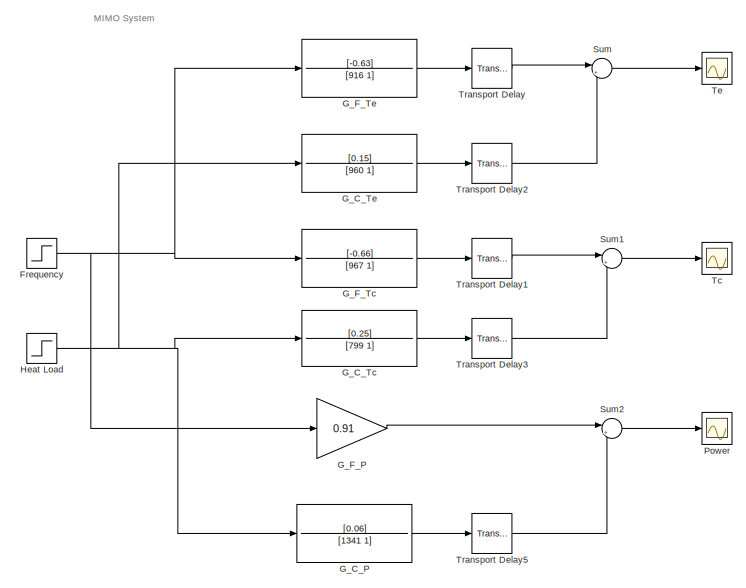
[diagram: root canvas - part 1/2, left side, full height]
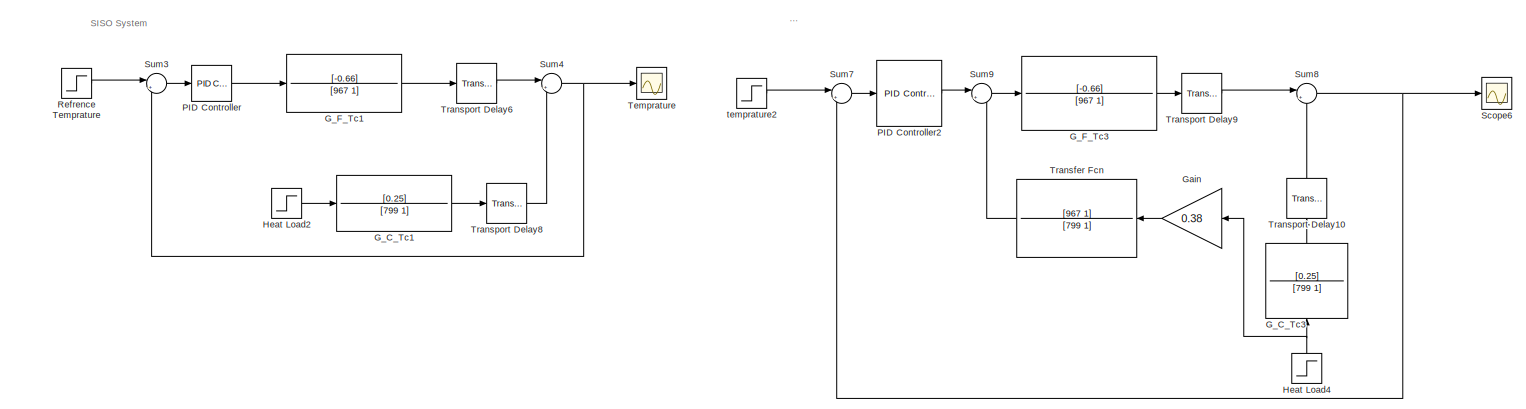
[diagram: root canvas - part 2/2, bottom right region]
MODEL slx_b7752944e2b1
KIND model
CONFIG AbsTol = auto
CONFIG EnableMultiTasking = off
CONFIG FixedStep = auto
CONFIG MaxStep = auto
CONFIG MinStep = auto
CONFIG RelTol = 1e-3
CONFIG SampleTimeConstraint = Unconstrained
CONFIG Solver = VariableStepAuto
CONFIG SolverName = VariableStepAuto
CONFIG StartTime = 0.0
CONFIG StopTime = 5000
BLOCK [Step] Frequency
  SampleTime = 0
  Time = 60
BLOCK [TransferFcn] G_C_P
  Denominator = [1341 1]
  Numerator = [0.06]
BLOCK [TransferFcn] G_C_Tc
  Denominator = [799 1]
  Numerator = [0.25]
BLOCK [TransferFcn] G_C_Tc1
  Denominator = [799 1]
  Numerator = [0.25]
BLOCK [TransferFcn] G_C_Tc3
  Denominator = [799 1]
  Numerator = [0.25]
BLOCK [TransferFcn] G_C_Te
  Denominator = [960 1]
  Numerator = [0.15]
BLOCK [Gain] G_F_P
  Gain = 0.91
BLOCK [TransferFcn] G_F_Tc
  Denominator = [967 1]
  Numerator = [-0.66]
BLOCK [TransferFcn] G_F_Tc1
  Denominator = [967 1]
  Numerator = [-0.66]
BLOCK [TransferFcn] G_F_Tc3
  Denominator = [967 1]
  Numerator = [-0.66]
BLOCK [TransferFcn] G_F_Te
  Denominator = [916 1]
  Numerator = [-0.63]
BLOCK [Gain] Gain
  Gain = 0.38
BLOCK [Step] Heat Load
  SampleTime = 0
  Time = 10
BLOCK [Step] Heat Load2
  SampleTime = 0
  Time = 0
BLOCK [Step] Heat Load4
  After = 1400
  SampleTime = 0
  Time = 0
BLOCK [Reference] PID Controller  REF=simulink/Continuous/PID Controller
  Ports = [1, 1]
  SourceBlock = simulink/Continuous/PID Controller
  SourceProductBaseCode = SL
  SourceType = PID 1dof
BLOCK [Reference] PID Controller2  REF=simulink/Continuous/PID Controller
  Ports = [1, 1]
  SourceBlock = simulink/Continuous/PID Controller
  SourceProductBaseCode = SL
  SourceType = PID 1dof
BLOCK [Scope] Power
  Floating = off
  NumInputPorts = 1
  Ports = [1]
  ScopeSpecificationString = Simulink.scopes.TimeScopeBlockCfg('CurrentConfiguration', extmgr.ConfigurationSet(extmgr.Configuration('Core','General UI',true,'FigureColor',[1 0.949019607843137 0.866666666666667]),extmgr.Configuration('Core','Source UI',true),extmgr.Configuration('Sources','WiredSimulink',true,'DataLoggingVariableName','ScopeData3'),extmgr.Configuration('Visuals','Time Domain',true,'SerializedDisplays',{struct(...<+1676ch>
BLOCK [Step] Refrence Temprature
  After = 5
  SampleTime = 0
  Time = 0
BLOCK [Scope] Scope6
  Floating = off
  NumInputPorts = 1
  Ports = [1]
  ScopeSpecificationString = Simulink.scopes.TimeScopeBlockCfg('CurrentConfiguration', extmgr.ConfigurationSet(extmgr.Configuration('Core','General UI',true,'FigureColor',[0.941176470588235 0.941176470588235 0.941176470588235]),extmgr.Configuration('Core','Source UI',true),extmgr.Configuration('Sources','WiredSimulink',true,'DataLoggingVariableName','ScopeData2'),extmgr.Configuration('Visuals','Time Domain',true,'SerializedDi...<+1715ch>
BLOCK [Sum] Sum
  Inputs = |++
  Ports = [2, 1]
BLOCK [Sum] Sum1
  Inputs = |++
  Ports = [2, 1]
BLOCK [Sum] Sum2
  Inputs = |++
  Ports = [2, 1]
BLOCK [Sum] Sum3
  Inputs = |+-
  Ports = [2, 1]
BLOCK [Sum] Sum4
  Inputs = |++
  Ports = [2, 1]
BLOCK [Sum] Sum7
  Inputs = |+-
  Ports = [2, 1]
BLOCK [Sum] Sum8
  Inputs = |++
  Ports = [2, 1]
BLOCK [Sum] Sum9
  Inputs = |++
  Ports = [2, 1]
BLOCK [Scope] Tc
  Floating = off
  NumInputPorts = 1
  Ports = [1]
  ScopeSpecificationString = Simulink.scopes.TimeScopeBlockCfg('CurrentConfiguration', extmgr.ConfigurationSet(extmgr.Configuration('Core','General UI',true),extmgr.Configuration('Core','Source UI',true),extmgr.Configuration('Sources','WiredSimulink',true,'DataLoggingVariableName','ScopeData2'),extmgr.Configuration('Visuals','Time Domain',true,'SerializedDisplays',{struct('MinYLimReal','-0.45954','MaxYLimReal','0.07388','YLab...<+1428ch>
BLOCK [Scope] Te
  Floating = off
  NumInputPorts = 1
  Ports = [1]
  ScopeSpecificationString = Simulink.scopes.TimeScopeBlockCfg('CurrentConfiguration', extmgr.ConfigurationSet(extmgr.Configuration('Core','General UI',true,'FigureColor',[0.941176470588235 0.941176470588235 0.941176470588235]),extmgr.Configuration('Core','Source UI',true),extmgr.Configuration('Sources','WiredSimulink',true,'DataLoggingVariableName','ScopeData1'),extmgr.Configuration('Visuals','Time Domain',true,'SerializedDi...<+1683ch>
BLOCK [Scope] Temprature
  Floating = off
  NumInputPorts = 1
  Ports = [1]
  ScopeSpecificationString = Simulink.scopes.TimeScopeBlockCfg('CurrentConfiguration', extmgr.ConfigurationSet(extmgr.Configuration('Core','General UI',true),extmgr.Configuration('Core','Source UI',true),extmgr.Configuration('Sources','WiredSimulink',true,'DataLoggingVariableName','ScopeData2'),extmgr.Configuration('Visuals','Time Domain',true,'SerializedDisplays',{struct('MinYLimReal','-1.06909','MaxYLimReal','9.20746','YLab...<+1449ch>
BLOCK [TransferFcn] Transfer Fcn
  Denominator = [799 1]
  Numerator = [967 1]
BLOCK [TransportDelay] Transport Delay
  DelayTime = 15
  Ports = [1, 1]
BLOCK [TransportDelay] Transport Delay1
  DelayTime = 35
  Ports = [1, 1]
BLOCK [TransportDelay] Transport Delay10
  DelayTime = 15
  Ports = [1, 1]
BLOCK [TransportDelay] Transport Delay2
  DelayTime = 42
  Ports = [1, 1]
BLOCK [TransportDelay] Transport Delay3
  DelayTime = 15
  Ports = [1, 1]
BLOCK [TransportDelay] Transport Delay5
  DelayTime = 182
  Ports = [1, 1]
BLOCK [TransportDelay] Transport Delay6
  DelayTime = 35
  Ports = [1, 1]
BLOCK [TransportDelay] Transport Delay8
  DelayTime = 15
  Ports = [1, 1]
BLOCK [TransportDelay] Transport Delay9
  DelayTime = 35
  Ports = [1, 1]
BLOCK [Step] temprature2
  After = 5
  SampleTime = 0
  Time = 0
ANNOTATION (root): FeedForward
ANNOTATION (root): MIMO System
ANNOTATION (root): SISO System
NET Frequency:1 -> G_F_P:1, G_F_Tc:1, G_F_Te:1
LINE G_C_P:1 -> Transport Delay5:1
LINE G_C_Tc1:1 -> Transport Delay8:1
LINE G_C_Tc3:1 -> Transport Delay10:1
LINE G_C_Tc:1 -> Transport Delay3:1
LINE G_C_Te:1 -> Transport Delay2:1
LINE G_F_P:1 -> Sum2:1
LINE G_F_Tc1:1 -> Transport Delay6:1
LINE G_F_Tc3:1 -> Transport Delay9:1
LINE G_F_Tc:1 -> Transport Delay1:1
LINE G_F_Te:1 -> Transport Delay:1
LINE Gain:1 -> Transfer Fcn:1
LINE Heat Load2:1 -> G_C_Tc1:1
NET Heat Load4:1 -> G_C_Tc3:1, Gain:1
NET Heat Load:1 -> G_C_P:1, G_C_Tc:1, G_C_Te:1
LINE PID Controller2:1 -> Sum9:1
LINE PID Controller:1 -> G_F_Tc1:1
LINE Refrence Temprature:1 -> Sum3:1
LINE Sum1:1 -> Tc:1
LINE Sum2:1 -> Power:1
LINE Sum3:1 -> PID Controller:1
NET Sum4:1 -> Sum3:2, Temprature:1
LINE Sum7:1 -> PID Controller2:1
NET Sum8:1 -> Scope6:1, Sum7:2
LINE Sum9:1 -> G_F_Tc3:1
LINE Sum:1 -> Te:1
LINE Transfer Fcn:1 -> Sum9:2
LINE Transport Delay10:1 -> Sum8:2
LINE Transport Delay1:1 -> Sum1:1
LINE Transport Delay2:1 -> Sum:2
LINE Transport Delay3:1 -> Sum1:2
LINE Transport Delay5:1 -> Sum2:2
LINE Transport Delay6:1 -> Sum4:1
LINE Transport Delay8:1 -> Sum4:2
LINE Transport Delay9:1 -> Sum8:1
LINE Transport Delay:1 -> Sum:1
LINE temprature2:1 -> Sum7:1
note: NET lines group one-source signal fan-out (src -> all destinations, sorted); 1:1 wires keep LINE
